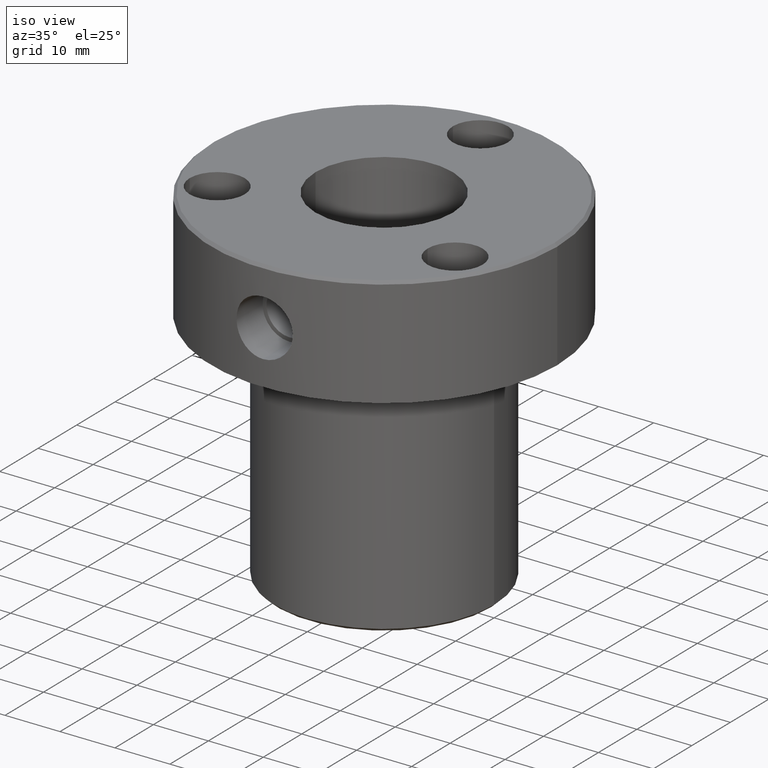
[diagram: clean part render]
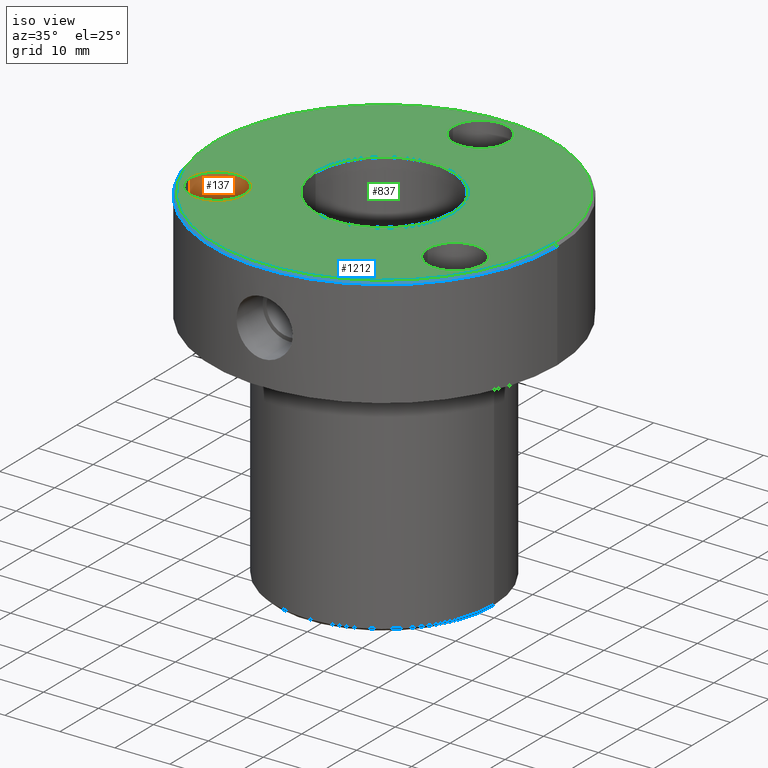
[diagram: same view with three faces highlighted in distinct colors, each labeled with its STEP entity id]
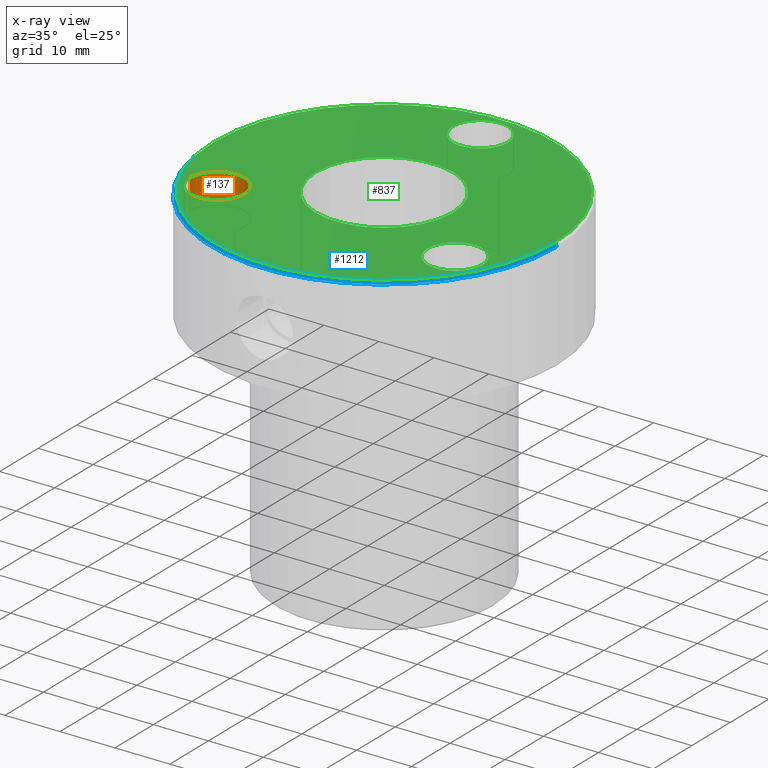
[diagram: x-ray of the same camera — body ghosted, the three highlighted faces saturated]
A machine part, iso view with three faces highlighted in distinct colors.
The next image is the same camera in x-ray (body ghosted, the three faces saturated) — at least one of them is partly hidden behind the body in this view.
Their STEP definitions:

[orange] entity #137 — the highlighted cylindrical surface (edge-blend (fillet) strip) has radius 5 mm, axis along (-0, -0, 1).
#46 = DIRECTION ( 'NONE',  ( -0.000000000000000000, -0.000000000000000000, 1.000000000000000000 ) ) ;
#48 = DIRECTION ( 'NONE',  ( -0.000000000000000000, -0.000000000000000000, 1.000000000000000000 ) ) ;
#87 = ORIENTED_EDGE ( 'NONE', *, *, #271, .F. ) ;
#137 = ADVANCED_FACE ( 'NONE', ( #464 ), #565, .F. ) ;
#264 = DIRECTION ( 'NONE',  ( -0.000000000000000000, -0.000000000000000000, 1.000000000000000000 ) ) ;
#271 = EDGE_CURVE ( 'NONE', #1149, #665, #966, .T. ) ;
#329 = DIRECTION ( 'NONE',  ( 1.000000000000000000, 0.000000000000000000, 0.000000000000000000 ) ) ;
#342 = AXIS2_PLACEMENT_3D ( 'NONE', #358, #46, #329 ) ;
#346 = AXIS2_PLACEMENT_3D ( 'NONE', #852, #761, #969 ) ;
#354 = CARTESIAN_POINT ( 'NONE',  ( -26.65063509461099756, -12.49999999999995381, 0.000000000000000000 ) ) ;
#355 = CARTESIAN_POINT ( 'NONE',  ( -26.65063509461100111, -12.49999999999995381, 0.000000000000000000 ) ) ;
#358 = CARTESIAN_POINT ( 'NONE',  ( -21.65063509461100111, -12.49999999999995381, -5.400000000000000355 ) ) ;
#362 = DIRECTION ( 'NONE',  ( 1.000000000000000000, 0.000000000000000000, 0.000000000000000000 ) ) ;
#464 = FACE_OUTER_BOUND ( 'NONE', #1135, .T. ) ;
#483 = EDGE_CURVE ( 'NONE', #665, #782, #562, .T. ) ;
#534 = ORIENTED_EDGE ( 'NONE', *, *, #1203, .T. ) ;
#542 = VECTOR ( 'NONE', #264, 1000.000000000000000 ) ;
#553 = ORIENTED_EDGE ( 'NONE', *, *, #642, .T. ) ;
#562 = LINE ( 'NONE', #354, #542 ) ;
#565 = CYLINDRICAL_SURFACE ( 'NONE', #346, 4.999999999999997335 ) ;
#642 = EDGE_CURVE ( 'NONE', #1148, #782, #716, .T. ) ;
#665 = VERTEX_POINT ( 'NONE', #860 ) ;
#716 = CIRCLE ( 'NONE', #1027, 5.000000000000000888 ) ;
#761 = DIRECTION ( 'NONE',  ( -0.000000000000000000, -0.000000000000000000, 1.000000000000000000 ) ) ;
#782 = VERTEX_POINT ( 'NONE', #355 ) ;
#836 = CARTESIAN_POINT ( 'NONE',  ( -21.65063509461100111, -12.49999999999995381, 0.000000000000000000 ) ) ;
#852 = CARTESIAN_POINT ( 'NONE',  ( -21.65063509461100111, -12.49999999999995381, 0.000000000000000000 ) ) ;
#856 = DIRECTION ( 'NONE',  ( -0.000000000000000000, -0.000000000000000000, 1.000000000000000000 ) ) ;
#860 = CARTESIAN_POINT ( 'NONE',  ( -26.65063509461099756, -12.49999999999995381, -5.400000000000000355 ) ) ;
#902 = LINE ( 'NONE', #1100, #1194 ) ;
#966 = CIRCLE ( 'NONE', #342, 4.999999999999997335 ) ;
#969 = DIRECTION ( 'NONE',  ( 1.000000000000000000, 0.000000000000000000, 0.000000000000000000 ) ) ;
#1022 = ORIENTED_EDGE ( 'NONE', *, *, #483, .F. ) ;
#1027 = AXIS2_PLACEMENT_3D ( 'NONE', #836, #856, #362 ) ;
#1100 = CARTESIAN_POINT ( 'NONE',  ( -16.65063509461100466, -12.49999999999995381, 0.000000000000000000 ) ) ;
#1134 = CARTESIAN_POINT ( 'NONE',  ( -16.65063509461100111, -12.49999999999995381, 0.000000000000000000 ) ) ;
#1135 = EDGE_LOOP ( 'NONE', ( #1022, #87, #534, #553 ) ) ;
#1141 = CARTESIAN_POINT ( 'NONE',  ( -16.65063509461100466, -12.49999999999995381, -5.400000000000000355 ) ) ;
#1148 = VERTEX_POINT ( 'NONE', #1134 ) ;
#1149 = VERTEX_POINT ( 'NONE', #1141 ) ;
#1194 = VECTOR ( 'NONE', #48, 1000.000000000000000 ) ;
#1203 = EDGE_CURVE ( 'NONE', #1149, #1148, #902, .T. ) ;

[blue] entity #1212 — the highlighted conical surface has half-angle 45 deg.
#30 = DIRECTION ( 'NONE',  ( -0.7071067811865573427, 0.000000000000000000, -0.7071067811865378028 ) ) ;
#44 = CIRCLE ( 'NONE', #1052, 30.99999999999998579 ) ;
#121 = LINE ( 'NONE', #131, #139 ) ;
#131 = CARTESIAN_POINT ( 'NONE',  ( -30.99999999999998579, 0.000000000000000000, 0.000000000000000000 ) ) ;
#133 = DIRECTION ( 'NONE',  ( -1.000000000000000000, 0.000000000000000000, 0.000000000000000000 ) ) ;
#135 = CARTESIAN_POINT ( 'NONE',  ( -31.50000000000000000, 3.857637417314162689E-15, -0.5000000000000005551 ) ) ;
#139 = VECTOR ( 'NONE', #30, 1000.000000000000000 ) ;
#140 = DIRECTION ( 'NONE',  ( -0.000000000000000000, -0.000000000000000000, 1.000000000000000000 ) ) ;
#166 = ORIENTED_EDGE ( 'NONE', *, *, #997, .T. ) ;
#207 = ORIENTED_EDGE ( 'NONE', *, *, #295, .F. ) ;
#295 = EDGE_CURVE ( 'NONE', #1178, #628, #44, .T. ) ;
#298 = ORIENTED_EDGE ( 'NONE', *, *, #499, .F. ) ;
#499 = EDGE_CURVE ( 'NONE', #628, #1244, #728, .T. ) ;
#621 = CARTESIAN_POINT ( 'NONE',  ( 0.000000000000000000, 0.000000000000000000, 0.000000000000000000 ) ) ;
#628 = VERTEX_POINT ( 'NONE', #655 ) ;
#629 = EDGE_LOOP ( 'NONE', ( #298, #207, #166, #1204 ) ) ;
#647 = CARTESIAN_POINT ( 'NONE',  ( 0.000000000000000000, 0.000000000000000000, -0.5000000000000005551 ) ) ;
#655 = CARTESIAN_POINT ( 'NONE',  ( 30.99999999999998579, 3.827021247335478113E-15, 0.000000000000000000 ) ) ;
#702 = VECTOR ( 'NONE', #734, 1000.000000000000000 ) ;
#708 = DIRECTION ( 'NONE',  ( 1.000000000000000000, 0.000000000000000000, 0.000000000000000000 ) ) ;
#728 = LINE ( 'NONE', #924, #702 ) ;
#734 = DIRECTION ( 'NONE',  ( 0.7071067811865573427, 8.659560562355054885E-17, -0.7071067811865378028 ) ) ;
#800 = CARTESIAN_POINT ( 'NONE',  ( 0.000000000000000000, 0.000000000000000000, 0.000000000000000000 ) ) ;
#807 = CARTESIAN_POINT ( 'NONE',  ( -30.99999999999998579, 0.000000000000000000, 0.000000000000000000 ) ) ;
#810 = DIRECTION ( 'NONE',  ( 1.000000000000000000, 0.000000000000000000, 0.000000000000000000 ) ) ;
#849 = CIRCLE ( 'NONE', #988, 31.50000000000000000 ) ;
#923 = DIRECTION ( 'NONE',  ( 0.000000000000000000, 0.000000000000000000, -1.000000000000000000 ) ) ;
#924 = CARTESIAN_POINT ( 'NONE',  ( 30.99999999999998579, 3.796405077356793537E-15, 0.000000000000000000 ) ) ;
#958 = CARTESIAN_POINT ( 'NONE',  ( 31.50000000000000000, 0.000000000000000000, -0.5000000000000005551 ) ) ;
#988 = AXIS2_PLACEMENT_3D ( 'NONE', #647, #923, #708 ) ;
#994 = DIRECTION ( 'NONE',  ( 0.000000000000000000, 0.000000000000000000, -1.000000000000000000 ) ) ;
#997 = EDGE_CURVE ( 'NONE', #1178, #1139, #121, .T. ) ;
#1052 = AXIS2_PLACEMENT_3D ( 'NONE', #621, #140, #810 ) ;
#1139 = VERTEX_POINT ( 'NONE', #135 ) ;
#1157 = EDGE_CURVE ( 'NONE', #1244, #1139, #849, .T. ) ;
#1158 = CONICAL_SURFACE ( 'NONE', #1176, 30.99999999999998579, 0.7853981633974621568 ) ;
#1176 = AXIS2_PLACEMENT_3D ( 'NONE', #800, #994, #133 ) ;
#1178 = VERTEX_POINT ( 'NONE', #807 ) ;
#1197 = FACE_OUTER_BOUND ( 'NONE', #629, .T. ) ;
#1204 = ORIENTED_EDGE ( 'NONE', *, *, #1157, .F. ) ;
#1212 = ADVANCED_FACE ( 'NONE', ( #1197 ), #1158, .T. ) ;
#1244 = VERTEX_POINT ( 'NONE', #958 ) ;

[green] entity #837 — the highlighted planar face has unit normal (0, -0, 1).
#1 = FACE_BOUND ( 'NONE', #235, .T. ) ;
#13 = EDGE_CURVE ( 'NONE', #912, #73, #142, .T. ) ;
#19 = CARTESIAN_POINT ( 'NONE',  ( 0.000000000000000000, 25.00000000000001066, 0.000000000000000000 ) ) ;
#25 = DIRECTION ( 'NONE',  ( 1.000000000000000000, 0.000000000000000000, 0.000000000000000000 ) ) ;
#39 = VERTEX_POINT ( 'NONE', #786 ) ;
#44 = CIRCLE ( 'NONE', #1052, 30.99999999999998579 ) ;
#69 = FACE_BOUND ( 'NONE', #442, .T. ) ;
#73 = VERTEX_POINT ( 'NONE', #920 ) ;
#77 = DIRECTION ( 'NONE',  ( -0.000000000000000000, -0.000000000000000000, 1.000000000000000000 ) ) ;
#78 = CARTESIAN_POINT ( 'NONE',  ( 0.000000000000000000, 0.000000000000000000, 0.000000000000000000 ) ) ;
#82 = PLANE ( 'NONE',  #1006 ) ;
#119 = DIRECTION ( 'NONE',  ( -0.000000000000000000, -0.000000000000000000, 1.000000000000000000 ) ) ;
#126 = CIRCLE ( 'NONE', #683, 5.000000000000000888 ) ;
#140 = DIRECTION ( 'NONE',  ( -0.000000000000000000, -0.000000000000000000, 1.000000000000000000 ) ) ;
#142 = CIRCLE ( 'NONE', #715, 5.000000000000000888 ) ;
#151 = ORIENTED_EDGE ( 'NONE', *, *, #642, .F. ) ;
#168 = DIRECTION ( 'NONE',  ( 1.000000000000000000, 0.000000000000000000, 0.000000000000000000 ) ) ;
#172 = CARTESIAN_POINT ( 'NONE',  ( 0.000000000000000000, 25.00000000000001066, 0.000000000000000000 ) ) ;
#181 = EDGE_CURVE ( 'NONE', #545, #649, #1058, .T. ) ;
#205 = EDGE_CURVE ( 'NONE', #628, #1178, #801, .T. ) ;
#214 = DIRECTION ( 'NONE',  ( -0.000000000000000000, -0.000000000000000000, 1.000000000000000000 ) ) ;
#235 = EDGE_LOOP ( 'NONE', ( #151, #954 ) ) ;
#238 = AXIS2_PLACEMENT_3D ( 'NONE', #1097, #589, #1092 ) ;
#252 = ORIENTED_EDGE ( 'NONE', *, *, #1170, .F. ) ;
#254 = CARTESIAN_POINT ( 'NONE',  ( -5.000000000000000888, 25.00000000000001066, 0.000000000000000000 ) ) ;
#263 = CARTESIAN_POINT ( 'NONE',  ( 16.65063509461091584, -12.50000000000010125, 0.000000000000000000 ) ) ;
#281 = DIRECTION ( 'NONE',  ( -0.000000000000000000, -0.000000000000000000, 1.000000000000000000 ) ) ;
#294 = DIRECTION ( 'NONE',  ( 1.000000000000000000, 0.000000000000000000, 0.000000000000000000 ) ) ;
#295 = EDGE_CURVE ( 'NONE', #1178, #628, #44, .T. ) ;
#350 = EDGE_CURVE ( 'NONE', #39, #931, #984, .T. ) ;
#355 = CARTESIAN_POINT ( 'NONE',  ( -26.65063509461100111, -12.49999999999995381, 0.000000000000000000 ) ) ;
#362 = DIRECTION ( 'NONE',  ( 1.000000000000000000, 0.000000000000000000, 0.000000000000000000 ) ) ;
#387 = ORIENTED_EDGE ( 'NONE', *, *, #181, .F. ) ;
#397 = DIRECTION ( 'NONE',  ( -0.000000000000000000, -0.000000000000000000, 1.000000000000000000 ) ) ;
#428 = ORIENTED_EDGE ( 'NONE', *, *, #1077, .T. ) ;
#442 = EDGE_LOOP ( 'NONE', ( #252, #1218 ) ) ;
#448 = EDGE_LOOP ( 'NONE', ( #428, #743 ) ) ;
#449 = CARTESIAN_POINT ( 'NONE',  ( 26.65063509461091940, -12.50000000000010125, 0.000000000000000000 ) ) ;
#469 = CARTESIAN_POINT ( 'NONE',  ( 0.000000000000000000, 0.000000000000000000, 0.000000000000000000 ) ) ;
#545 = VERTEX_POINT ( 'NONE', #449 ) ;
#573 = EDGE_CURVE ( 'NONE', #649, #545, #1192, .T. ) ;
#577 = DIRECTION ( 'NONE',  ( 0.000000000000000000, 0.000000000000000000, -1.000000000000000000 ) ) ;
#589 = DIRECTION ( 'NONE',  ( -0.000000000000000000, -0.000000000000000000, 1.000000000000000000 ) ) ;
#591 = EDGE_CURVE ( 'NONE', #782, #1148, #1235, .T. ) ;
#611 = ORIENTED_EDGE ( 'NONE', *, *, #573, .F. ) ;
#616 = AXIS2_PLACEMENT_3D ( 'NONE', #978, #119, #778 ) ;
#621 = CARTESIAN_POINT ( 'NONE',  ( 0.000000000000000000, 0.000000000000000000, 0.000000000000000000 ) ) ;
#628 = VERTEX_POINT ( 'NONE', #655 ) ;
#642 = EDGE_CURVE ( 'NONE', #1148, #782, #716, .T. ) ;
#649 = VERTEX_POINT ( 'NONE', #263 ) ;
#654 = CARTESIAN_POINT ( 'NONE',  ( -12.50000000000000000, 0.000000000000000000, 0.000000000000000000 ) ) ;
#655 = CARTESIAN_POINT ( 'NONE',  ( 30.99999999999998579, 3.827021247335478113E-15, 0.000000000000000000 ) ) ;
#676 = DIRECTION ( 'NONE',  ( 1.000000000000000000, 0.000000000000000000, 0.000000000000000000 ) ) ;
#683 = AXIS2_PLACEMENT_3D ( 'NONE', #172, #77, #1003 ) ;
#685 = ORIENTED_EDGE ( 'NONE', *, *, #205, .T. ) ;
#715 = AXIS2_PLACEMENT_3D ( 'NONE', #19, #214, #25 ) ;
#716 = CIRCLE ( 'NONE', #1027, 5.000000000000000888 ) ;
#743 = ORIENTED_EDGE ( 'NONE', *, *, #350, .T. ) ;
#756 = EDGE_LOOP ( 'NONE', ( #929, #685 ) ) ;
#758 = FACE_BOUND ( 'NONE', #448, .T. ) ;
#759 = AXIS2_PLACEMENT_3D ( 'NONE', #78, #1254, #858 ) ;
#762 = CIRCLE ( 'NONE', #921, 12.50000000000000000 ) ;
#778 = DIRECTION ( 'NONE',  ( 1.000000000000000000, 0.000000000000000000, 0.000000000000000000 ) ) ;
#782 = VERTEX_POINT ( 'NONE', #355 ) ;
#786 = CARTESIAN_POINT ( 'NONE',  ( 12.50000000000000000, 1.530808498934191521E-15, 0.000000000000000000 ) ) ;
#801 = CIRCLE ( 'NONE', #943, 30.99999999999998579 ) ;
#807 = CARTESIAN_POINT ( 'NONE',  ( -30.99999999999998579, 0.000000000000000000, 0.000000000000000000 ) ) ;
#810 = DIRECTION ( 'NONE',  ( 1.000000000000000000, 0.000000000000000000, 0.000000000000000000 ) ) ;
#836 = CARTESIAN_POINT ( 'NONE',  ( -21.65063509461100111, -12.49999999999995381, 0.000000000000000000 ) ) ;
#837 = ADVANCED_FACE ( 'NONE', ( #1, #1037, #69, #758, #1250 ), #82, .T. ) ;
#856 = DIRECTION ( 'NONE',  ( -0.000000000000000000, -0.000000000000000000, 1.000000000000000000 ) ) ;
#858 = DIRECTION ( 'NONE',  ( -1.000000000000000000, 0.000000000000000000, 0.000000000000000000 ) ) ;
#878 = CARTESIAN_POINT ( 'NONE',  ( 0.000000000000000000, 0.000000000000000000, 0.000000000000000000 ) ) ;
#912 = VERTEX_POINT ( 'NONE', #254 ) ;
#920 = CARTESIAN_POINT ( 'NONE',  ( 5.000000000000000888, 25.00000000000001066, 0.000000000000000000 ) ) ;
#921 = AXIS2_PLACEMENT_3D ( 'NONE', #1088, #577, #1067 ) ;
#929 = ORIENTED_EDGE ( 'NONE', *, *, #295, .T. ) ;
#931 = VERTEX_POINT ( 'NONE', #654 ) ;
#943 = AXIS2_PLACEMENT_3D ( 'NONE', #878, #397, #676 ) ;
#954 = ORIENTED_EDGE ( 'NONE', *, *, #591, .F. ) ;
#978 = CARTESIAN_POINT ( 'NONE',  ( -21.65063509461100111, -12.49999999999995381, 0.000000000000000000 ) ) ;
#984 = CIRCLE ( 'NONE', #759, 12.50000000000000000 ) ;
#1003 = DIRECTION ( 'NONE',  ( 1.000000000000000000, 0.000000000000000000, 0.000000000000000000 ) ) ;
#1006 = AXIS2_PLACEMENT_3D ( 'NONE', #469, #1059, #168 ) ;
#1008 = EDGE_LOOP ( 'NONE', ( #387, #611 ) ) ;
#1027 = AXIS2_PLACEMENT_3D ( 'NONE', #836, #856, #362 ) ;
#1037 = FACE_BOUND ( 'NONE', #1008, .T. ) ;
#1052 = AXIS2_PLACEMENT_3D ( 'NONE', #621, #140, #810 ) ;
#1058 = CIRCLE ( 'NONE', #1214, 5.000000000000000888 ) ;
#1059 = DIRECTION ( 'NONE',  ( 0.000000000000000000, -0.000000000000000000, 1.000000000000000000 ) ) ;
#1067 = DIRECTION ( 'NONE',  ( -1.000000000000000000, 0.000000000000000000, 0.000000000000000000 ) ) ;
#1077 = EDGE_CURVE ( 'NONE', #931, #39, #762, .T. ) ;
#1088 = CARTESIAN_POINT ( 'NONE',  ( 0.000000000000000000, 0.000000000000000000, 0.000000000000000000 ) ) ;
#1092 = DIRECTION ( 'NONE',  ( 1.000000000000000000, 0.000000000000000000, 0.000000000000000000 ) ) ;
#1097 = CARTESIAN_POINT ( 'NONE',  ( 21.65063509461091940, -12.50000000000010125, 0.000000000000000000 ) ) ;
#1134 = CARTESIAN_POINT ( 'NONE',  ( -16.65063509461100111, -12.49999999999995381, 0.000000000000000000 ) ) ;
#1148 = VERTEX_POINT ( 'NONE', #1134 ) ;
#1164 = CARTESIAN_POINT ( 'NONE',  ( 21.65063509461091940, -12.50000000000010125, 0.000000000000000000 ) ) ;
#1170 = EDGE_CURVE ( 'NONE', #73, #912, #126, .T. ) ;
#1178 = VERTEX_POINT ( 'NONE', #807 ) ;
#1192 = CIRCLE ( 'NONE', #238, 5.000000000000000888 ) ;
#1214 = AXIS2_PLACEMENT_3D ( 'NONE', #1164, #281, #294 ) ;
#1218 = ORIENTED_EDGE ( 'NONE', *, *, #13, .F. ) ;
#1235 = CIRCLE ( 'NONE', #616, 5.000000000000000888 ) ;
#1250 = FACE_OUTER_BOUND ( 'NONE', #756, .T. ) ;
#1254 = DIRECTION ( 'NONE',  ( 0.000000000000000000, 0.000000000000000000, -1.000000000000000000 ) ) ;